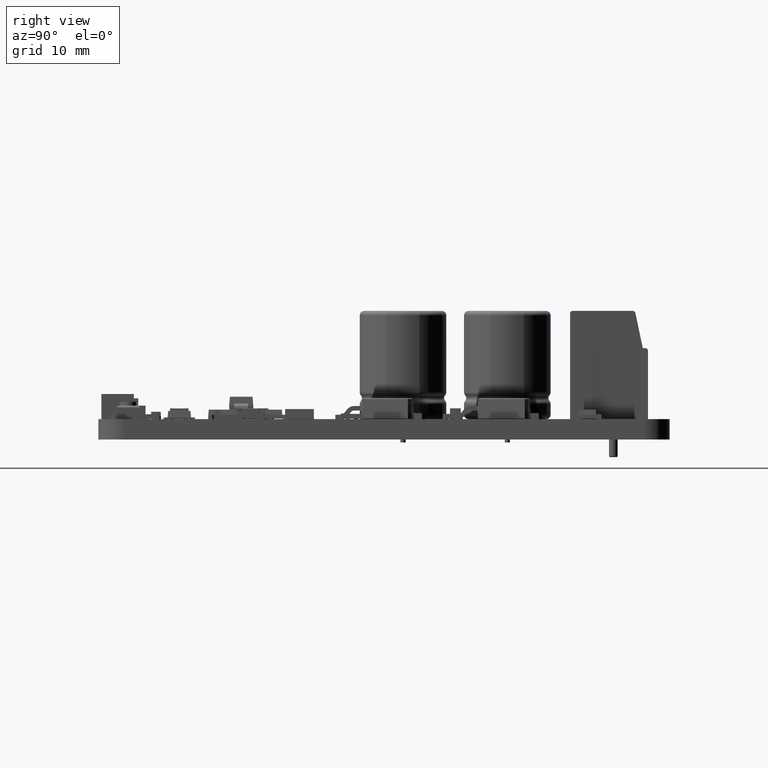
[diagram: clean part render]
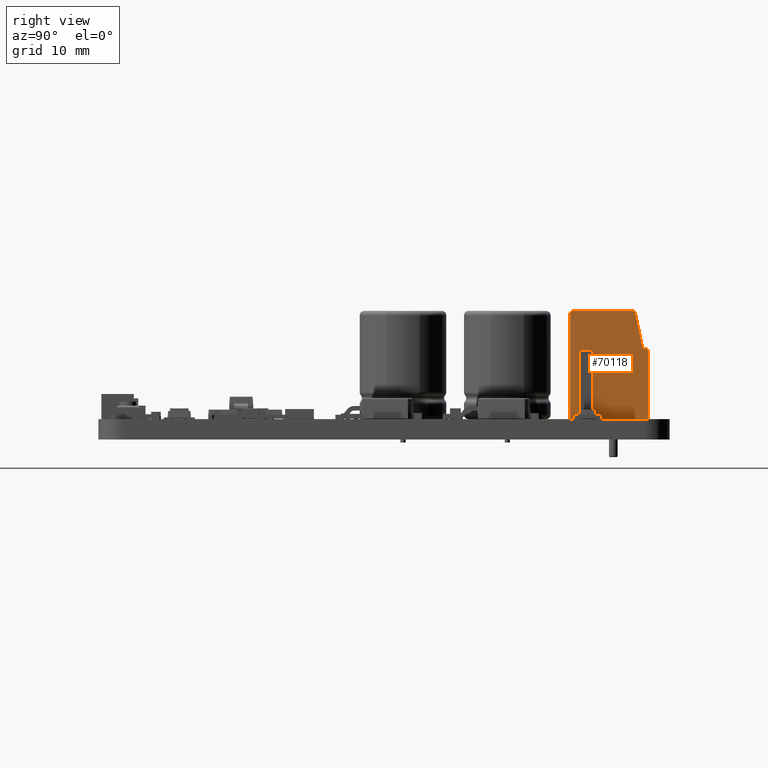
[diagram: same view with one face highlighted and labeled with its STEP entity id]
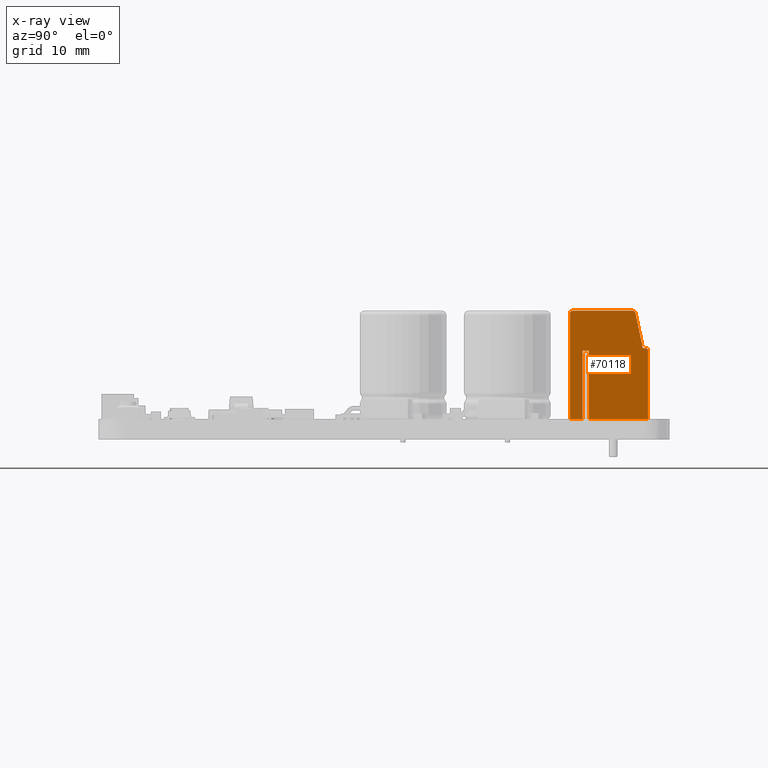
[diagram: x-ray of the same camera — body ghosted, the highlighted face saturated]
A machine part, right view. The second image highlights one B-rep face of the part: STEP entity #70118.
The next image is the same camera in x-ray: the body ghosted, the highlighted face saturated — about 0% of this face is hidden behind the body in this view.
In plain terms, the highlighted planar face has unit normal (-1, 0, 0).
Its self-contained STEP definition (entity closure, byte-faithful):
#69925 = VERTEX_POINT('',#69926);
#69926 = CARTESIAN_POINT('',(2.15,7.9,22.5));
#69932 = EDGE_CURVE('',#69925,#69933,#69935,.T.);
#69933 = VERTEX_POINT('',#69934);
#69934 = CARTESIAN_POINT('',(1.45,7.9,22.5));
#69935 = LINE('',#69936,#69937);
#69936 = CARTESIAN_POINT('',(2.15,7.9,22.5));
#69937 = VECTOR('',#69938,1.);
#69938 = DIRECTION('',(-1.,-6.123031769112E-17,0.));
#69955 = VERTEX_POINT('',#69956);
#69956 = CARTESIAN_POINT('',(1.45,-1.867539997159E-16,22.5));
#69971 = EDGE_CURVE('',#69933,#69955,#69972,.T.);
#69972 = LINE('',#69973,#69974);
#69973 = CARTESIAN_POINT('',(1.45,7.9,22.5));
#69974 = VECTOR('',#69975,1.);
#69975 = DIRECTION('',(6.123031769112E-17,-1.,0.));
#70010 = VERTEX_POINT('',#70011);
#70011 = CARTESIAN_POINT('',(2.15,8.933642317451E-16,22.5));
#70017 = EDGE_CURVE('',#69925,#70010,#70018,.T.);
#70018 = LINE('',#70019,#70020);
#70019 = CARTESIAN_POINT('',(2.15,7.9,22.5));
#70020 = VECTOR('',#70021,1.);
#70021 = DIRECTION('',(6.123031769112E-17,-1.,0.));
#70118 = ADVANCED_FACE('',(#70119),#70205,.F.);
#70119 = FACE_BOUND('',#70120,.T.);
#70120 = EDGE_LOOP('',(#70121,#70122,#70130,#70138,#70147,#70155,#70163,
    #70172,#70180,#70189,#70197,#70203,#70204));
#70121 = ORIENTED_EDGE('',*,*,#70017,.T.);
#70122 = ORIENTED_EDGE('',*,*,#70123,.F.);
#70123 = EDGE_CURVE('',#70124,#70010,#70126,.T.);
#70124 = VERTEX_POINT('',#70125);
#70125 = CARTESIAN_POINT('',(9.,1.734723475977E-15,22.5));
#70126 = LINE('',#70127,#70128);
#70127 = CARTESIAN_POINT('',(9.,1.734723475977E-15,22.5));
#70128 = VECTOR('',#70129,1.);
#70129 = DIRECTION('',(-1.,-1.228261670411E-16,0.));
#70130 = ORIENTED_EDGE('',*,*,#70131,.F.);
#70131 = EDGE_CURVE('',#70132,#70124,#70134,.T.);
#70132 = VERTEX_POINT('',#70133);
#70133 = CARTESIAN_POINT('',(9.,7.9,22.5));
#70134 = LINE('',#70135,#70136);
#70135 = CARTESIAN_POINT('',(9.,8.2,22.5));
#70136 = VECTOR('',#70137,1.);
#70137 = DIRECTION('',(0.,-1.,0.));
#70138 = ORIENTED_EDGE('',*,*,#70139,.T.);
#70139 = EDGE_CURVE('',#70132,#70140,#70142,.T.);
#70140 = VERTEX_POINT('',#70141);
#70141 = CARTESIAN_POINT('',(8.7,8.2,22.5));
#70142 = CIRCLE('',#70143,0.3);
#70143 = AXIS2_PLACEMENT_3D('',#70144,#70145,#70146);
#70144 = CARTESIAN_POINT('',(8.7,7.9,22.5));
#70145 = DIRECTION('',(0.,0.,1.));
#70146 = DIRECTION('',(-1.,0.,0.));
#70147 = ORIENTED_EDGE('',*,*,#70148,.F.);
#70148 = EDGE_CURVE('',#70149,#70140,#70151,.T.);
#70149 = VERTEX_POINT('',#70150);
#70150 = CARTESIAN_POINT('',(8.4,8.2,22.5));
#70151 = LINE('',#70152,#70153);
#70152 = CARTESIAN_POINT('',(9.,8.2,22.5));
#70153 = VECTOR('',#70154,1.);
#70154 = DIRECTION('',(1.,0.,0.));
#70155 = ORIENTED_EDGE('',*,*,#70156,.F.);
#70156 = EDGE_CURVE('',#70157,#70149,#70159,.T.);
#70157 = VERTEX_POINT('',#70158);
#70158 = CARTESIAN_POINT('',(7.549927197299,12.261458946237,22.5));
#70159 = LINE('',#70160,#70161);
#70160 = CARTESIAN_POINT('',(8.42518134715,8.079689119171,22.5));
#70161 = VECTOR('',#70162,1.);
#70162 = DIRECTION('',(0.204863154123,-0.978790625253,0.));
#70163 = ORIENTED_EDGE('',*,*,#70164,.T.);
#70164 = EDGE_CURVE('',#70157,#70165,#70167,.T.);
#70165 = VERTEX_POINT('',#70166);
#70166 = CARTESIAN_POINT('',(7.256290009723,12.5,22.5));
#70167 = CIRCLE('',#70168,0.3);
#70168 = AXIS2_PLACEMENT_3D('',#70169,#70170,#70171);
#70169 = CARTESIAN_POINT('',(7.256290009723,12.2,22.5));
#70170 = DIRECTION('',(0.,0.,1.));
#70171 = DIRECTION('',(-1.,0.,0.));
#70172 = ORIENTED_EDGE('',*,*,#70173,.F.);
#70173 = EDGE_CURVE('',#70174,#70165,#70176,.T.);
#70174 = VERTEX_POINT('',#70175);
#70175 = CARTESIAN_POINT('',(0.3,12.5,22.5));
#70176 = LINE('',#70177,#70178);
#70177 = CARTESIAN_POINT('',(9.,12.5,22.5));
#70178 = VECTOR('',#70179,1.);
#70179 = DIRECTION('',(1.,0.,0.));
#70180 = ORIENTED_EDGE('',*,*,#70181,.T.);
#70181 = EDGE_CURVE('',#70174,#70182,#70184,.T.);
#70182 = VERTEX_POINT('',#70183);
#70183 = CARTESIAN_POINT('',(-2.473188158757E-15,12.2,22.5));
#70184 = CIRCLE('',#70185,0.3);
#70185 = AXIS2_PLACEMENT_3D('',#70186,#70187,#70188);
#70186 = CARTESIAN_POINT('',(0.3,12.2,22.5));
#70187 = DIRECTION('',(0.,0.,1.));
#70188 = DIRECTION('',(-1.,0.,0.));
#70189 = ORIENTED_EDGE('',*,*,#70190,.F.);
#70190 = EDGE_CURVE('',#70191,#70182,#70193,.T.);
#70191 = VERTEX_POINT('',#70192);
#70192 = CARTESIAN_POINT('',(-1.577721810442E-30,-1.110223024625E-16,
    22.5));
#70193 = LINE('',#70194,#70195);
#70194 = CARTESIAN_POINT('',(-1.734723475977E-15,8.2,22.5));
#70195 = VECTOR('',#70196,1.);
#70196 = DIRECTION('',(-1.846161706952E-16,1.,0.));
#70197 = ORIENTED_EDGE('',*,*,#70198,.F.);
#70198 = EDGE_CURVE('',#69955,#70191,#70199,.T.);
#70199 = LINE('',#70200,#70201);
#70200 = CARTESIAN_POINT('',(9.,1.734723475977E-15,22.5));
#70201 = VECTOR('',#70202,1.);
#70202 = DIRECTION('',(-1.,-1.228261670411E-16,0.));
#70203 = ORIENTED_EDGE('',*,*,#69971,.F.);
#70204 = ORIENTED_EDGE('',*,*,#69932,.F.);
#70205 = PLANE('',#70206);
#70206 = AXIS2_PLACEMENT_3D('',#70207,#70208,#70209);
#70207 = CARTESIAN_POINT('',(9.,8.2,22.5));
#70208 = DIRECTION('',(0.,0.,-1.));
#70209 = DIRECTION('',(-1.,0.,0.));